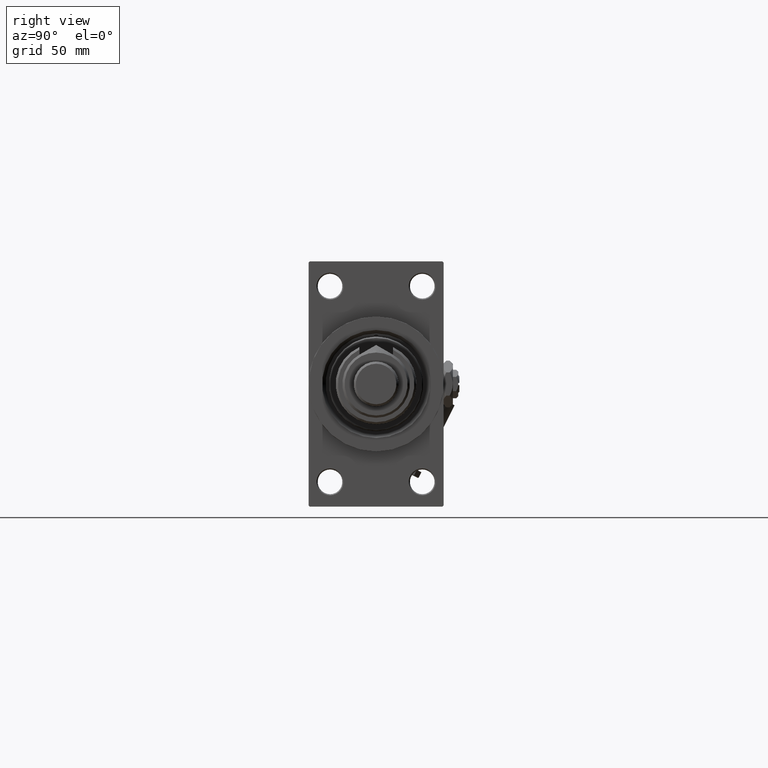
[diagram: clean part render]
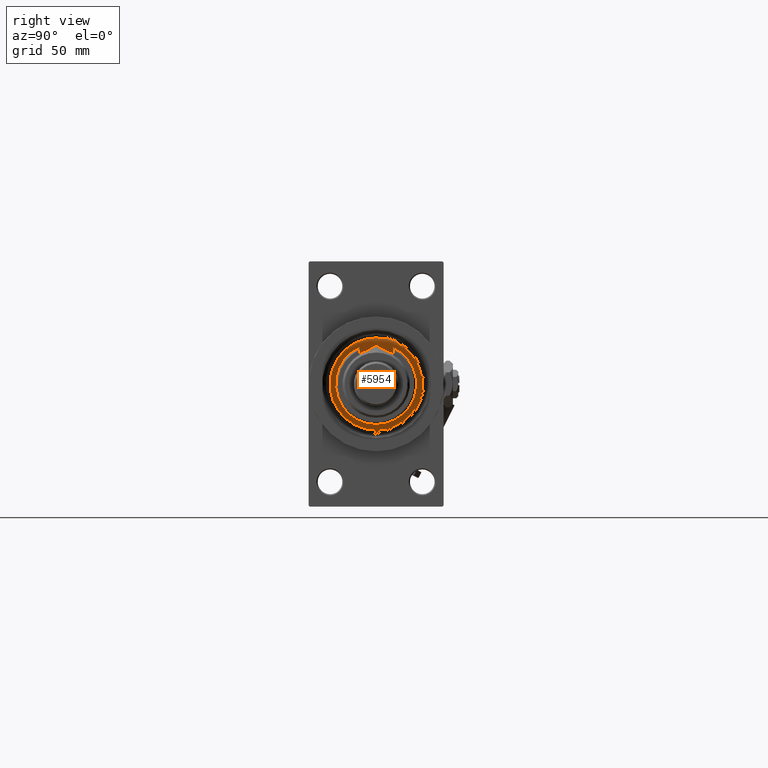
[diagram: same view with one face highlighted and labeled with its STEP entity id]
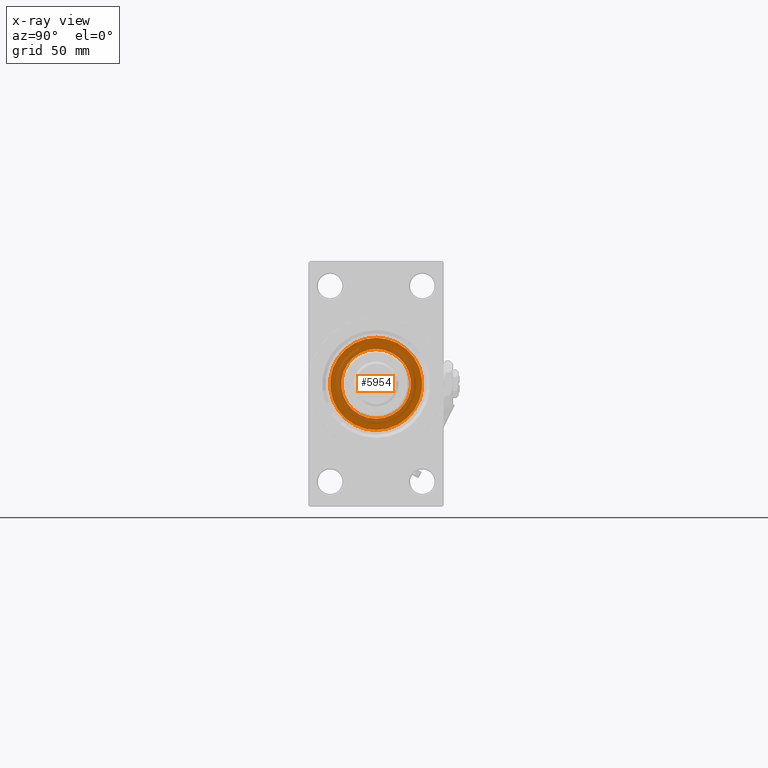
[diagram: x-ray of the same camera — body ghosted, the highlighted face saturated]
A machine part, right view. The second image highlights one B-rep face of the part: STEP entity #5954.
The next image is the same camera in x-ray: the body ghosted, the highlighted face saturated — about 40% of this face is hidden behind the body in this view.
In plain terms, the highlighted planar face has unit normal (1, -0, -0).
Its self-contained STEP definition (entity closure, byte-faithful):
#813 = EDGE_CURVE ( 'NONE', #22917, #35090, #34181, .T. ) ;
#1808 = ORIENTED_EDGE ( 'NONE', *, *, #13620, .T. ) ;
#3503 = AXIS2_PLACEMENT_3D ( 'NONE', #23453, #23186, #47759 ) ;
#5847 = EDGE_CURVE ( 'NONE', #34157, #10992, #11814, .T. ) ;
#5954 = ADVANCED_FACE ( 'NONE', ( #49049, #40935 ), #45257, .T. ) ;
#8241 = DIRECTION ( 'NONE',  ( 1.000000000000000000, 0.000000000000000000, -0.000000000000000000 ) ) ;
#10992 = VERTEX_POINT ( 'NONE', #29778 ) ;
#11814 = CIRCLE ( 'NONE', #27373, 20.50000000000000355 ) ;
#12222 = ORIENTED_EDGE ( 'NONE', *, *, #813, .F. ) ;
#13116 = ORIENTED_EDGE ( 'NONE', *, *, #5847, .T. ) ;
#13620 = EDGE_CURVE ( 'NONE', #10992, #34157, #46564, .T. ) ;
#16362 = DIRECTION ( 'NONE',  ( 0.000000000000000000, 0.000000000000000000, 1.000000000000000000 ) ) ;
#16367 = AXIS2_PLACEMENT_3D ( 'NONE', #53447, #20253, #28617 ) ;
#17498 = DIRECTION ( 'NONE',  ( 1.000000000000000000, 0.000000000000000000, 0.000000000000000000 ) ) ;
#18854 = EDGE_LOOP ( 'NONE', ( #42129, #12222 ) ) ;
#20253 = DIRECTION ( 'NONE',  ( 0.000000000000000000, 0.000000000000000000, 1.000000000000000000 ) ) ;
#22917 = VERTEX_POINT ( 'NONE', #40668 ) ;
#23186 = DIRECTION ( 'NONE',  ( 0.000000000000000000, 0.000000000000000000, 1.000000000000000000 ) ) ;
#23453 = CARTESIAN_POINT ( 'NONE',  ( 0.000000000000000000, 0.000000000000000000, 55.26000000000000512 ) ) ;
#25609 = CARTESIAN_POINT ( 'NONE',  ( 0.000000000000000000, 0.000000000000000000, 55.26000000000000512 ) ) ;
#27190 = CARTESIAN_POINT ( 'NONE',  ( 0.000000000000000000, 0.000000000000000000, 55.26000000000000512 ) ) ;
#27373 = AXIS2_PLACEMENT_3D ( 'NONE', #27190, #35540, #27732 ) ;
#27732 = DIRECTION ( 'NONE',  ( 1.000000000000000000, 0.000000000000000000, 0.000000000000000000 ) ) ;
#28617 = DIRECTION ( 'NONE',  ( 1.000000000000000000, 0.000000000000000000, 0.000000000000000000 ) ) ;
#29778 = CARTESIAN_POINT ( 'NONE',  ( 20.50000000000000355, 2.541142108230758269E-15, 55.26000000000000512 ) ) ;
#29872 = AXIS2_PLACEMENT_3D ( 'NONE', #25609, #42066, #17498 ) ;
#34157 = VERTEX_POINT ( 'NONE', #42060 ) ;
#34181 = CIRCLE ( 'NONE', #29872, 15.50000000000000000 ) ;
#35090 = VERTEX_POINT ( 'NONE', #38091 ) ;
#35540 = DIRECTION ( 'NONE',  ( 0.000000000000000000, 0.000000000000000000, 1.000000000000000000 ) ) ;
#38091 = CARTESIAN_POINT ( 'NONE',  ( 15.50000000000000000, 0.000000000000000000, 55.26000000000000512 ) ) ;
#40626 = CIRCLE ( 'NONE', #3503, 15.50000000000000000 ) ;
#40668 = CARTESIAN_POINT ( 'NONE',  ( -15.50000000000000000, 1.898202538678397557E-15, 55.26000000000000512 ) ) ;
#40935 = FACE_OUTER_BOUND ( 'NONE', #50139, .T. ) ;
#42041 = AXIS2_PLACEMENT_3D ( 'NONE', #53360, #16362, #8241 ) ;
#42060 = CARTESIAN_POINT ( 'NONE',  ( -20.50000000000000355, 0.000000000000000000, 55.26000000000000512 ) ) ;
#42066 = DIRECTION ( 'NONE',  ( 0.000000000000000000, 0.000000000000000000, 1.000000000000000000 ) ) ;
#42129 = ORIENTED_EDGE ( 'NONE', *, *, #50539, .F. ) ;
#45257 = PLANE ( 'NONE',  #42041 ) ;
#46564 = CIRCLE ( 'NONE', #16367, 20.50000000000000355 ) ;
#47759 = DIRECTION ( 'NONE',  ( 1.000000000000000000, 0.000000000000000000, 0.000000000000000000 ) ) ;
#49049 = FACE_BOUND ( 'NONE', #18854, .T. ) ;
#50139 = EDGE_LOOP ( 'NONE', ( #13116, #1808 ) ) ;
#50539 = EDGE_CURVE ( 'NONE', #35090, #22917, #40626, .T. ) ;
#53360 = CARTESIAN_POINT ( 'NONE',  ( 0.000000000000000000, 0.000000000000000000, 55.26000000000000512 ) ) ;
#53447 = CARTESIAN_POINT ( 'NONE',  ( 0.000000000000000000, 0.000000000000000000, 55.26000000000000512 ) ) ;